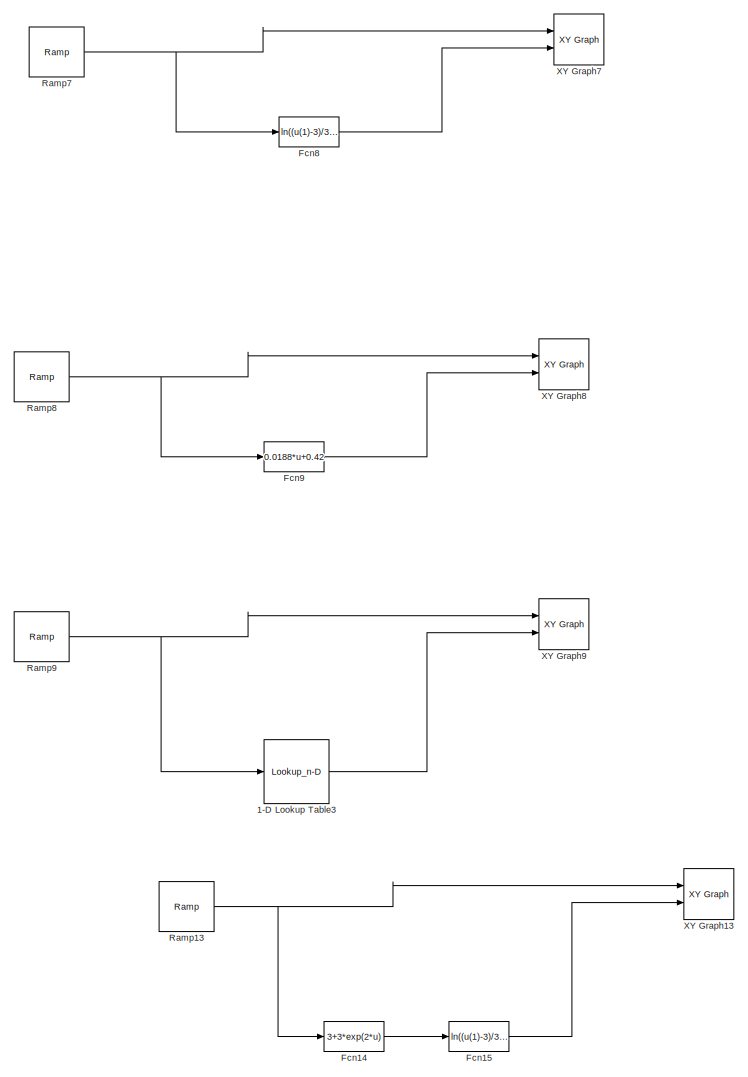
[diagram: root canvas - part 1/2, full width, top band]
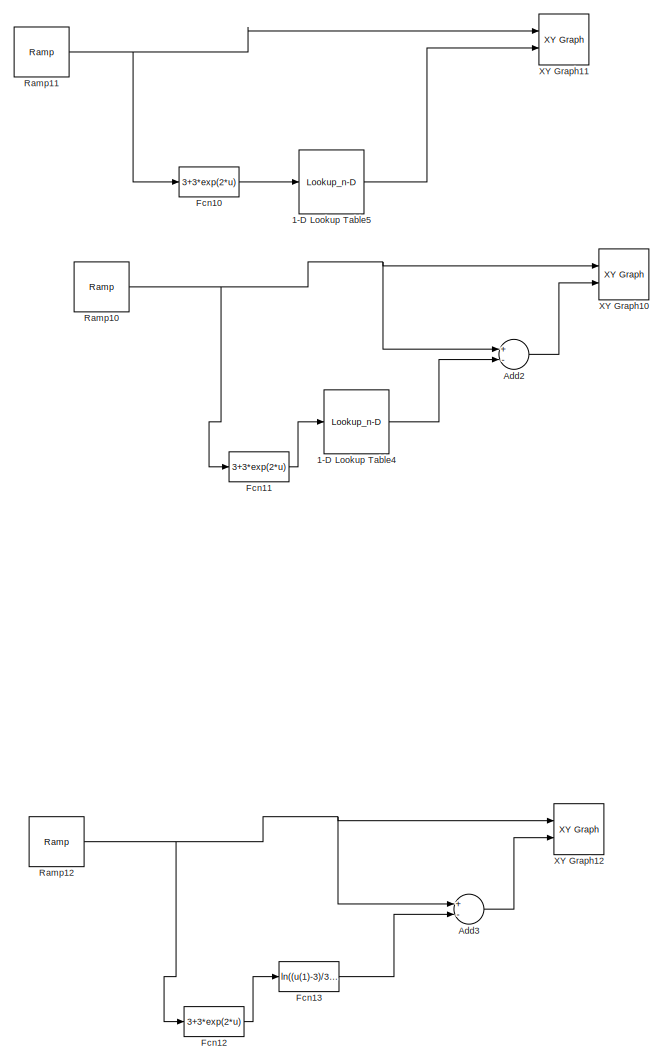
[diagram: root canvas - part 2/2, full width, bottom band]
MODEL slx_1cbeefcb9309
KIND model
CONFIG AbsTol = auto
CONFIG EnableMultiTasking = off
CONFIG FixedStep = auto
CONFIG MaxStep = auto
CONFIG MinStep = auto
CONFIG RelTol = 1e-3
CONFIG SampleTimeConstraint = Unconstrained
CONFIG Solver = VariableStepAuto
CONFIG SolverName = VariableStepAuto
CONFIG StartTime = 0.0
CONFIG StopTime = 800
BLOCK [Lookup_n-D] 1-D Lookup Table3
  BreakpointsForDimension1 = 3+3*exp(2*[0:5:50])
  InternalRulePriority = Speed
  NumberOfTableDimensions = 1
  Ports = [1, 1]
  RndMeth = Simplest
  Table = [0:5:50]
BLOCK [Lookup_n-D] 1-D Lookup Table4
  BreakpointsForDimension1 = 3+3*exp(2*[0:5:50])
  InternalRulePriority = Speed
  NumberOfTableDimensions = 1
  Ports = [1, 1]
  RndMeth = Simplest
  Table = [0:5:50]
BLOCK [Lookup_n-D] 1-D Lookup Table5
  BreakpointsForDimension1 = 3+3*exp(2*[0:5:50])
  InternalRulePriority = Speed
  NumberOfTableDimensions = 1
  Ports = [1, 1]
  RndMeth = Simplest
  Table = [0:5:50]
BLOCK [Sum] Add2
  InputSameDT = off
  Inputs = +-
  OutDataTypeStr = Inherit: Inherit via internal rule
  Ports = [2, 1]
  SaturateOnIntegerOverflow = off
BLOCK [Sum] Add3
  InputSameDT = off
  Inputs = +-
  OutDataTypeStr = Inherit: Inherit via internal rule
  Ports = [2, 1]
  SaturateOnIntegerOverflow = off
BLOCK [Fcn] Fcn10
  Expr = 3+3*exp(2*u)
BLOCK [Fcn] Fcn11
  Expr = 3+3*exp(2*u)
BLOCK [Fcn] Fcn12
  Expr = 3+3*exp(2*u)
BLOCK [Fcn] Fcn13
  Expr = ln((u(1)-3)/3)/2
BLOCK [Fcn] Fcn14
  Expr = 3+3*exp(2*u)
BLOCK [Fcn] Fcn15
  Expr = ln((u(1)-3)/3)/2
BLOCK [Fcn] Fcn8
  Expr = ln((u(1)-3)/3)/2
BLOCK [Fcn] Fcn9
  Expr = 0.0188*u+0.42
BLOCK [Reference] Ramp10  REF=simulink/Sources/Ramp
  Ports = [0, 1]
  SourceBlock = simulink/Sources/Ramp
  SourceProductBaseCode = SL
  SourceProductName = Simulink
  SourceType = Ramp
BLOCK [Reference] Ramp11  REF=simulink/Sources/Ramp
  Ports = [0, 1]
  SourceBlock = simulink/Sources/Ramp
  SourceProductBaseCode = SL
  SourceProductName = Simulink
  SourceType = Ramp
BLOCK [Reference] Ramp12  REF=simulink/Sources/Ramp
  Ports = [0, 1]
  SourceBlock = simulink/Sources/Ramp
  SourceProductBaseCode = SL
  SourceProductName = Simulink
  SourceType = Ramp
BLOCK [Reference] Ramp13  REF=simulink/Sources/Ramp
  Ports = [0, 1]
  SourceBlock = simulink/Sources/Ramp
  SourceProductBaseCode = SL
  SourceProductName = Simulink
  SourceType = Ramp
BLOCK [Reference] Ramp7  REF=simulink/Sources/Ramp
  Ports = [0, 1]
  SourceBlock = simulink/Sources/Ramp
  SourceProductBaseCode = SL
  SourceProductName = Simulink
  SourceType = Ramp
BLOCK [Reference] Ramp8  REF=simulink/Sources/Ramp
  Ports = [0, 1]
  SourceBlock = simulink/Sources/Ramp
  SourceProductBaseCode = SL
  SourceProductName = Simulink
  SourceType = Ramp
BLOCK [Reference] Ramp9  REF=simulink/Sources/Ramp
  Ports = [0, 1]
  SourceBlock = simulink/Sources/Ramp
  SourceProductBaseCode = SL
  SourceProductName = Simulink
  SourceType = Ramp
BLOCK [Reference] XY Graph10  REF=simulink/Sinks/XY Graph
  Ports = [2]
  SourceBlock = simulink/Sinks/XY Graph
  SourceProductBaseCode = SL
  SourceProductName = Simulink
  SourceType = XY scope.
BLOCK [Reference] XY Graph11  REF=simulink/Sinks/XY Graph
  Ports = [2]
  SourceBlock = simulink/Sinks/XY Graph
  SourceProductBaseCode = SL
  SourceProductName = Simulink
  SourceType = XY scope.
BLOCK [Reference] XY Graph12  REF=simulink/Sinks/XY Graph
  Ports = [2]
  SourceBlock = simulink/Sinks/XY Graph
  SourceProductBaseCode = SL
  SourceProductName = Simulink
  SourceType = XY scope.
BLOCK [Reference] XY Graph13  REF=simulink/Sinks/XY Graph
  Ports = [2]
  SourceBlock = simulink/Sinks/XY Graph
  SourceProductBaseCode = SL
  SourceProductName = Simulink
  SourceType = XY scope.
BLOCK [Reference] XY Graph7  REF=simulink/Sinks/XY Graph
  Ports = [2]
  SourceBlock = simulink/Sinks/XY Graph
  SourceProductBaseCode = SL
  SourceProductName = Simulink
  SourceType = XY scope.
BLOCK [Reference] XY Graph8  REF=simulink/Sinks/XY Graph
  Ports = [2]
  SourceBlock = simulink/Sinks/XY Graph
  SourceProductBaseCode = SL
  SourceProductName = Simulink
  SourceType = XY scope.
BLOCK [Reference] XY Graph9  REF=simulink/Sinks/XY Graph
  Ports = [2]
  SourceBlock = simulink/Sinks/XY Graph
  SourceProductBaseCode = SL
  SourceProductName = Simulink
  SourceType = XY scope.
LINE 1-D Lookup Table3:1 -> XY Graph9:2
LINE 1-D Lookup Table4:1 -> Add2:2
LINE 1-D Lookup Table5:1 -> XY Graph11:2
LINE Add2:1 -> XY Graph10:2
LINE Add3:1 -> XY Graph12:2
LINE Fcn10:1 -> 1-D Lookup Table5:1
LINE Fcn11:1 -> 1-D Lookup Table4:1
LINE Fcn12:1 -> Fcn13:1
LINE Fcn13:1 -> Add3:2
LINE Fcn14:1 -> Fcn15:1
LINE Fcn15:1 -> XY Graph13:2
LINE Fcn8:1 -> XY Graph7:2
LINE Fcn9:1 -> XY Graph8:2
NET Ramp10:1 -> Add2:1, Fcn11:1, XY Graph10:1
NET Ramp11:1 -> Fcn10:1, XY Graph11:1
NET Ramp12:1 -> Add3:1, Fcn12:1, XY Graph12:1
NET Ramp13:1 -> Fcn14:1, XY Graph13:1
NET Ramp7:1 -> Fcn8:1, XY Graph7:1
NET Ramp8:1 -> Fcn9:1, XY Graph8:1
NET Ramp9:1 -> 1-D Lookup Table3:1, XY Graph9:1
note: NET lines group one-source signal fan-out (src -> all destinations, sorted); 1:1 wires keep LINE
